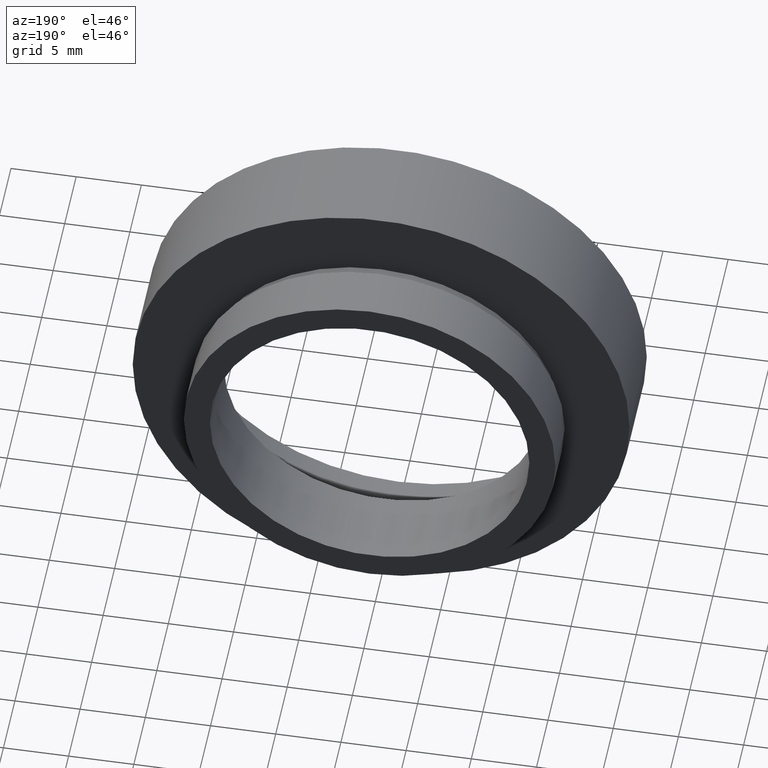
[diagram: clean part render]
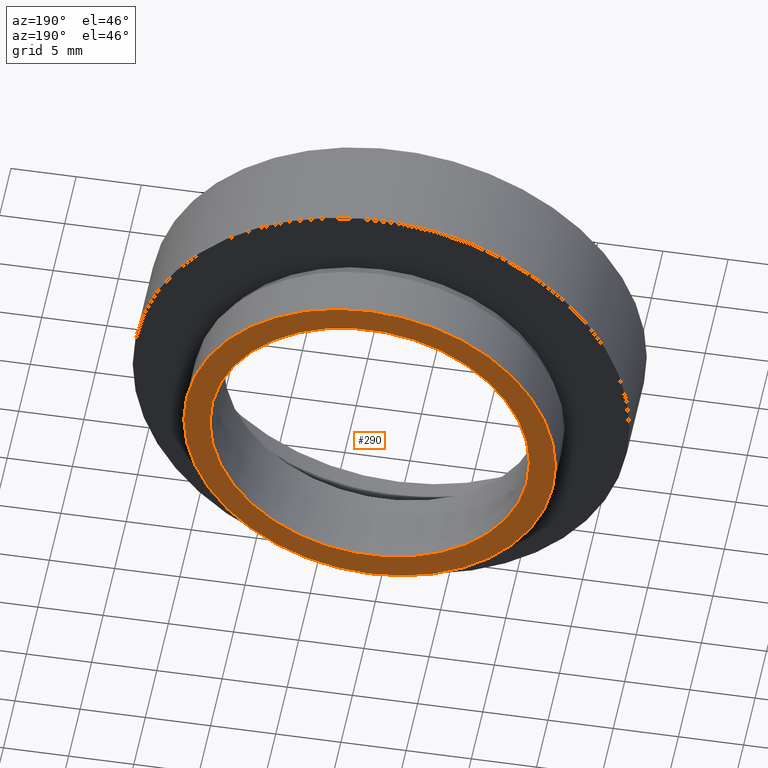
[diagram: same view with one face highlighted and labeled with its STEP entity id]
A machine part, auxiliary view. The second image highlights one B-rep face of the part: STEP entity #290.
In plain terms, the highlighted planar face has unit normal (0, -1, 0).
Its self-contained STEP definition (entity closure, byte-faithful):
#1 = CARTESIAN_POINT ( 'NONE',  ( 5.371323195044474300E-016, 12.49999999999999600, 0.0000000000000000000 ) ) ;
#3 = EDGE_CURVE ( 'NONE', #366, #114, #51, .T. ) ;
#10 = AXIS2_PLACEMENT_3D ( 'NONE', #50, #70, #326 ) ;
#12 = AXIS2_PLACEMENT_3D ( 'NONE', #170, #417, #169 ) ;
#35 = AXIS2_PLACEMENT_3D ( 'NONE', #448, #167, #119 ) ;
#50 = CARTESIAN_POINT ( 'NONE',  ( 12.25000000000000200, 12.49999999999999800, 0.0000000000000000000 ) ) ;
#51 = CIRCLE ( 'NONE', #88, 14.25000000000000200 ) ;
#55 = CIRCLE ( 'NONE', #12, 12.25000000000000200 ) ;
#70 = DIRECTION ( 'NONE',  ( 1.224646799147351000E-016, -1.000000000000000000, 0.0000000000000000000 ) ) ;
#88 = AXIS2_PLACEMENT_3D ( 'NONE', #188, #95, #250 ) ;
#91 = DIRECTION ( 'NONE',  ( -1.224646799147351000E-016, 1.000000000000000000, -0.0000000000000000000 ) ) ;
#95 = DIRECTION ( 'NONE',  ( -1.224646799147351000E-016, 1.000000000000000000, -0.0000000000000000000 ) ) ;
#110 = CIRCLE ( 'NONE', #35, 14.25000000000000200 ) ;
#114 = VERTEX_POINT ( 'NONE', #266 ) ;
#117 = AXIS2_PLACEMENT_3D ( 'NONE', #1, #91, #370 ) ;
#119 = DIRECTION ( 'NONE',  ( -1.000000000000000000, -1.217349807703022400E-016, 0.0000000000000000000 ) ) ;
#167 = DIRECTION ( 'NONE',  ( -1.224646799147351000E-016, 1.000000000000000000, -0.0000000000000000000 ) ) ;
#169 = DIRECTION ( 'NONE',  ( -1.000000000000000000, -1.416100796715760600E-016, 0.0000000000000000000 ) ) ;
#170 = CARTESIAN_POINT ( 'NONE',  ( 5.371323195044474300E-016, 12.49999999999999600, 0.0000000000000000000 ) ) ;
#188 = CARTESIAN_POINT ( 'NONE',  ( 5.371323195044474300E-016, 12.49999999999999600, 0.0000000000000000000 ) ) ;
#197 = PLANE ( 'NONE',  #10 ) ;
#231 = EDGE_CURVE ( 'NONE', #114, #366, #110, .T. ) ;
#250 = DIRECTION ( 'NONE',  ( -1.000000000000000000, -1.217349807703022400E-016, 0.0000000000000000000 ) ) ;
#266 = CARTESIAN_POINT ( 'NONE',  ( -14.25000000000000200, 12.49999999999999500, 0.0000000000000000000 ) ) ;
#268 = EDGE_LOOP ( 'NONE', ( #620, #346 ) ) ;
#290 = ADVANCED_FACE ( 'NONE', ( #525, #504 ), #197, .F. ) ;
#293 = CARTESIAN_POINT ( 'NONE',  ( -12.25000000000000200, 12.49999999999999500, 0.0000000000000000000 ) ) ;
#322 = EDGE_CURVE ( 'NONE', #389, #583, #558, .T. ) ;
#326 = DIRECTION ( 'NONE',  ( 1.000000000000000000, 1.224646799147351000E-016, 0.0000000000000000000 ) ) ;
#346 = ORIENTED_EDGE ( 'NONE', *, *, #3, .T. ) ;
#355 = ORIENTED_EDGE ( 'NONE', *, *, #468, .F. ) ;
#366 = VERTEX_POINT ( 'NONE', #621 ) ;
#370 = DIRECTION ( 'NONE',  ( -1.000000000000000000, -1.416100796715760600E-016, 0.0000000000000000000 ) ) ;
#389 = VERTEX_POINT ( 'NONE', #555 ) ;
#399 = ORIENTED_EDGE ( 'NONE', *, *, #322, .F. ) ;
#417 = DIRECTION ( 'NONE',  ( -1.224646799147351000E-016, 1.000000000000000000, -0.0000000000000000000 ) ) ;
#448 = CARTESIAN_POINT ( 'NONE',  ( 5.371323195044474300E-016, 12.49999999999999600, 0.0000000000000000000 ) ) ;
#468 = EDGE_CURVE ( 'NONE', #583, #389, #55, .T. ) ;
#504 = FACE_OUTER_BOUND ( 'NONE', #268, .T. ) ;
#525 = FACE_BOUND ( 'NONE', #612, .T. ) ;
#555 = CARTESIAN_POINT ( 'NONE',  ( 12.25000000000000400, 12.49999999999999800, 1.500192328955508100E-015 ) ) ;
#558 = CIRCLE ( 'NONE', #117, 12.25000000000000200 ) ;
#583 = VERTEX_POINT ( 'NONE', #293 ) ;
#612 = EDGE_LOOP ( 'NONE', ( #355, #399 ) ) ;
#620 = ORIENTED_EDGE ( 'NONE', *, *, #231, .T. ) ;
#621 = CARTESIAN_POINT ( 'NONE',  ( 14.25000000000000200, 12.49999999999999800, 1.745121688784978600E-015 ) ) ;